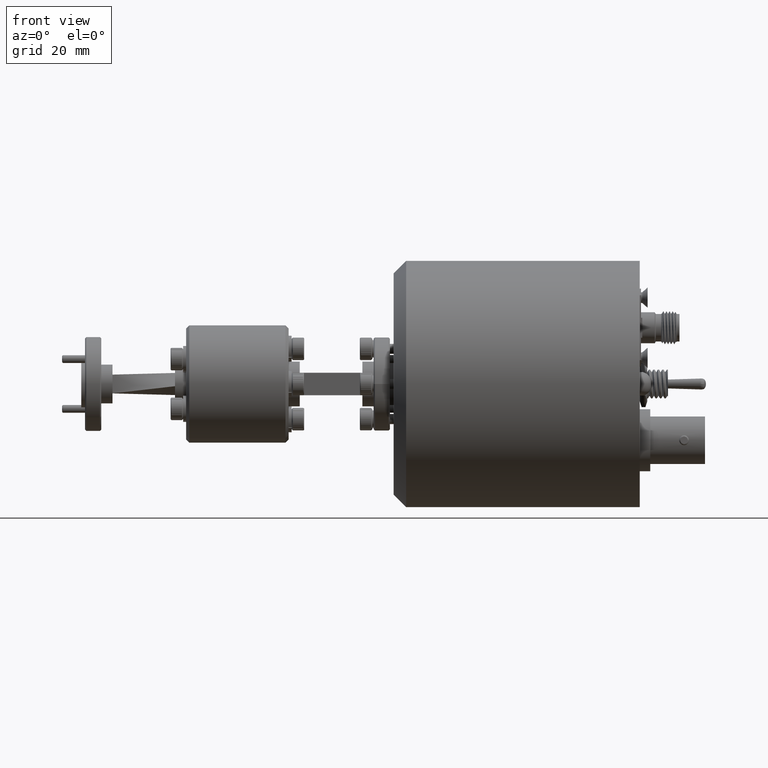
[diagram: clean part render]
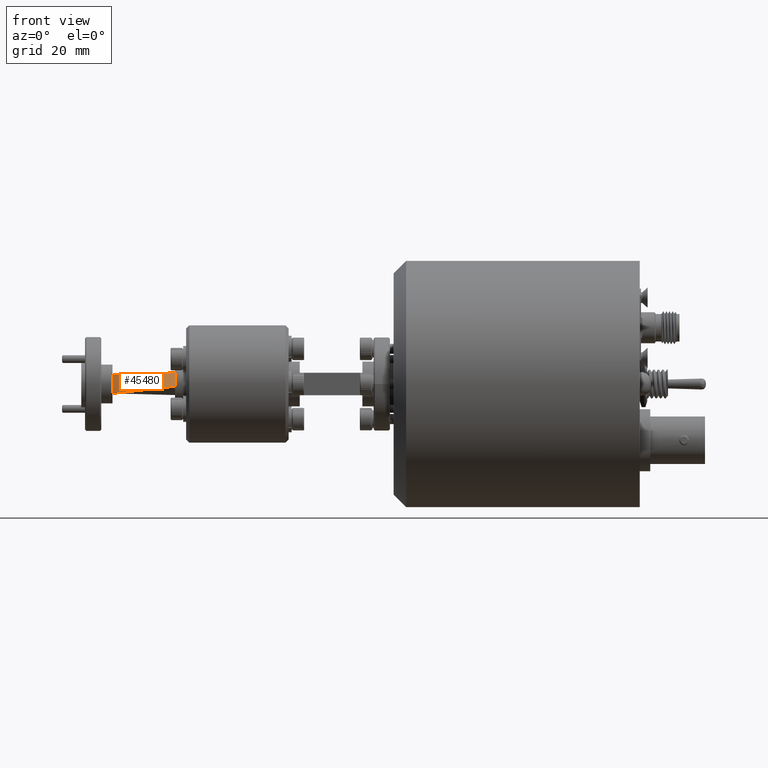
[diagram: same view with one face highlighted and labeled with its STEP entity id]
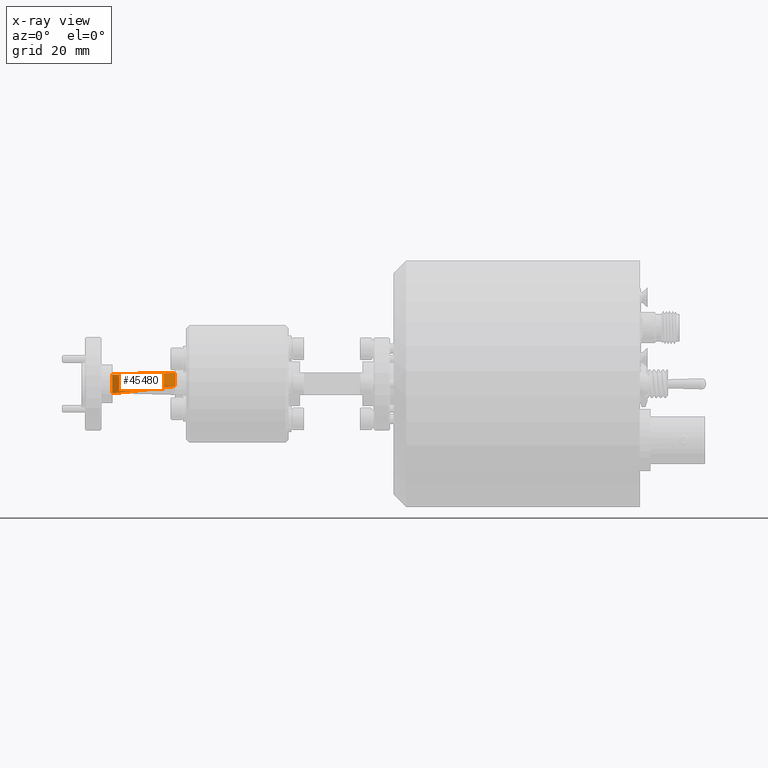
[diagram: x-ray of the same camera — body ghosted, the highlighted face saturated]
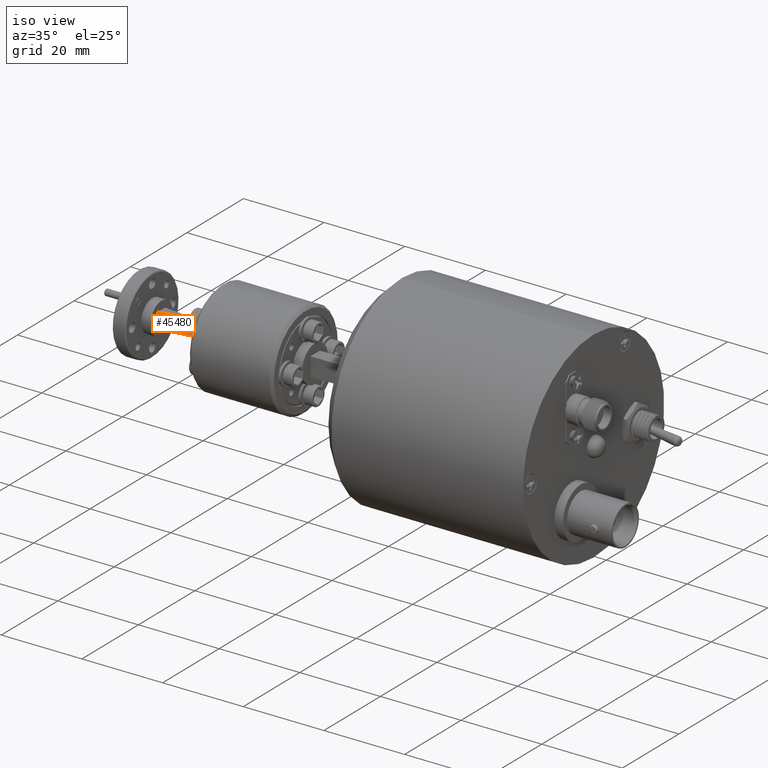
[diagram: same view with one face highlighted and labeled with its STEP entity id]
A machine part, front view. The second image highlights one B-rep face of the part: STEP entity #45480.
The next image is the same camera in x-ray: the body ghosted, the highlighted face saturated — about 0% of this face is hidden behind the body in this view.
A second angle (iso view) of the same face is appended — the face is thin or edge-on in the first view.
In plain terms, the highlighted face is a freeform B-spline surface patch.
Its self-contained STEP definition (entity closure, byte-faithful):
#1212 = VECTOR ( 'NONE', #70255, 1000.000000000000000 ) ;
#5475 = DIRECTION ( 'NONE',  ( 4.178127592846326200E-017, -3.108624468950438300E-015, 1.000000000000000000 ) ) ;
#5508 = EDGE_CURVE ( 'NONE', #36059, #97094, #32990, .T. ) ;
#5771 = LINE ( 'NONE', #97412, #85277 ) ;
#7217 = CARTESIAN_POINT ( 'NONE',  ( -47.16251138113374000, 34.28344927225279500, 39.24060134325450400 ) ) ;
#7894 = CARTESIAN_POINT ( 'NONE',  ( -34.46251138113373700, 36.00246207830624500, 39.58066537352179600 ) ) ;
#11328 = LINE ( 'NONE', #70964, #1212 ) ;
#19703 = CARTESIAN_POINT ( 'NONE',  ( -40.81251138113373100, 33.79591725711915700, 36.15859494022777200 ) ) ;
#20829 = FACE_OUTER_BOUND ( 'NONE', #87974, .T. ) ;
#31196 = CARTESIAN_POINT ( 'NONE',  ( -47.16251138113374000, 34.28344927225281000, 35.43060134325450200 ) ) ;
#31906 = CARTESIAN_POINT ( 'NONE',  ( -34.46251138113373700, 33.30838524198550500, 36.88658853720104200 ) ) ;
#32990 = LINE ( 'NONE', #19703, #91137 ) ;
#34887 = EDGE_CURVE ( 'NONE', #36059, #56741, #73915, .T. ) ;
#36059 = VERTEX_POINT ( 'NONE', #31196 ) ;
#37241 = VECTOR ( 'NONE', #5475, 1000.000000000000000 ) ;
#40013 = CARTESIAN_POINT ( 'NONE',  ( -47.16251138113374000, 34.28344927225279500, 38.60560134325450600 ) ) ;
#40364 = CARTESIAN_POINT ( 'NONE',  ( -34.46251138113373700, 33.75739804803895800, 37.33560134325450300 ) ) ;
#45480 = ADVANCED_FACE ( 'NONE', ( #20829 ), #91317, .T. ) ;
#48477 = CARTESIAN_POINT ( 'NONE',  ( -34.46251138113373700, 33.30838524198550500, 36.88658853720104200 ) ) ;
#49243 = ORIENTED_EDGE ( 'NONE', *, *, #34887, .F. ) ;
#51169 = DIRECTION ( 'NONE',  ( -0.9906147672477945100, -0.1340849976980009500, -0.02652538977894334400 ) ) ;
#55509 = CARTESIAN_POINT ( 'NONE',  ( -47.16251138113374000, 34.28344927225281000, 36.06560134325450700 ) ) ;
#55850 = CARTESIAN_POINT ( 'NONE',  ( -47.16251138113374000, 34.28344927225281000, 35.43060134325450200 ) ) ;
#56741 = VERTEX_POINT ( 'NONE', #99513 ) ;
#57855 = EDGE_CURVE ( 'NONE', #97094, #97713, #11328, .T. ) ;
#63622 = ORIENTED_EDGE ( 'NONE', *, *, #5508, .T. ) ;
#64199 = ORIENTED_EDGE ( 'NONE', *, *, #75471, .T. ) ;
#64660 = CARTESIAN_POINT ( 'NONE',  ( -47.16251138113374000, 34.28344927225280300, 37.97060134325450100 ) ) ;
#67829 = CARTESIAN_POINT ( 'NONE',  ( -34.46251138113373700, 36.00246207830624500, 39.58066537352179600 ) ) ;
#70255 = DIRECTION ( 'NONE',  ( -7.402246770642860900E-017, 0.7071067811865466800, 0.7071067811865483500 ) ) ;
#70964 = CARTESIAN_POINT ( 'NONE',  ( -34.46251138113373700, 33.30838524198550500, 36.88658853720104200 ) ) ;
#73915 = LINE ( 'NONE', #103519, #37241 ) ;
#75471 = EDGE_CURVE ( 'NONE', #97713, #56741, #5771, .T. ) ;
#78349 = ORIENTED_EDGE ( 'NONE', *, *, #57855, .T. ) ;
#79550 = CARTESIAN_POINT ( 'NONE',  ( -34.46251138113373700, 35.55344927225278400, 39.13165256746833600 ) ) ;
#80607 = CARTESIAN_POINT ( 'NONE',  ( -47.16251138113374000, 34.28344927225280300, 36.70060134325450500 ) ) ;
#85277 = VECTOR ( 'NONE', #51169, 1000.000000000000200 ) ;
#87974 = EDGE_LOOP ( 'NONE', ( #78349, #64199, #49243, #63622 ) ) ;
#88400 = CARTESIAN_POINT ( 'NONE',  ( -34.46251138113373700, 35.10443646619933100, 38.68263976141488300 ) ) ;
#91137 = VECTOR ( 'NONE', #101514, 1000.000000000000200 ) ;
#91317 = B_SPLINE_SURFACE_WITH_KNOTS ( 'NONE', 3, 1, ( 
 ( #31906, #55850 ),
 ( #40364, #55509 ),
 ( #96818, #80607 ),
 ( #88400, #64660 ),
 ( #79550, #40013 ),
 ( #7894, #7217 ) ),
 .UNSPECIFIED., .F., .F., .F.,
 ( 4, 2, 4 ),
 ( 2, 2 ),
 ( 0.0000000000000000000, 0.5000000000000000000, 1.000000000000000000 ),
 ( 0.0000000000000000000, 1.000000000000000000 ),
 .UNSPECIFIED. ) ;
#96818 = CARTESIAN_POINT ( 'NONE',  ( -34.46251138113373700, 34.20641085409241100, 37.78461414930796300 ) ) ;
#97094 = VERTEX_POINT ( 'NONE', #48477 ) ;
#97412 = CARTESIAN_POINT ( 'NONE',  ( -40.81251138113373100, 35.14295567527952400, 39.41063335838815400 ) ) ;
#97713 = VERTEX_POINT ( 'NONE', #67829 ) ;
#99513 = CARTESIAN_POINT ( 'NONE',  ( -47.16251138113374000, 34.28344927225279500, 39.24060134325450400 ) ) ;
#101514 = DIRECTION ( 'NONE',  ( 0.9906147672477942900, -0.07605612814133425000, 0.1135686941139467700 ) ) ;
#103519 = CARTESIAN_POINT ( 'NONE',  ( -47.16251138113374000, 34.28344927225281000, 35.43060134325450200 ) ) ;